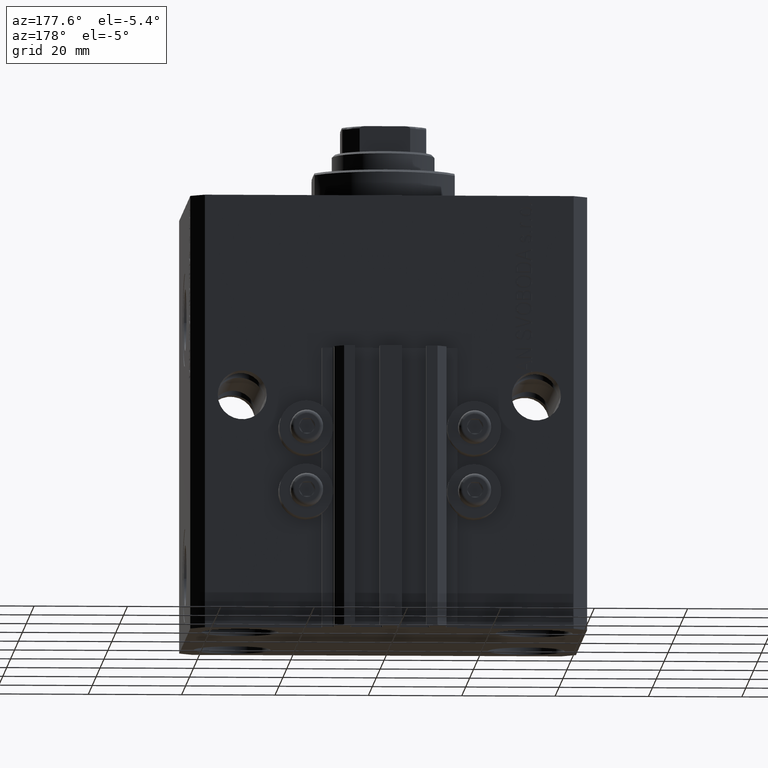
[diagram: clean part render]
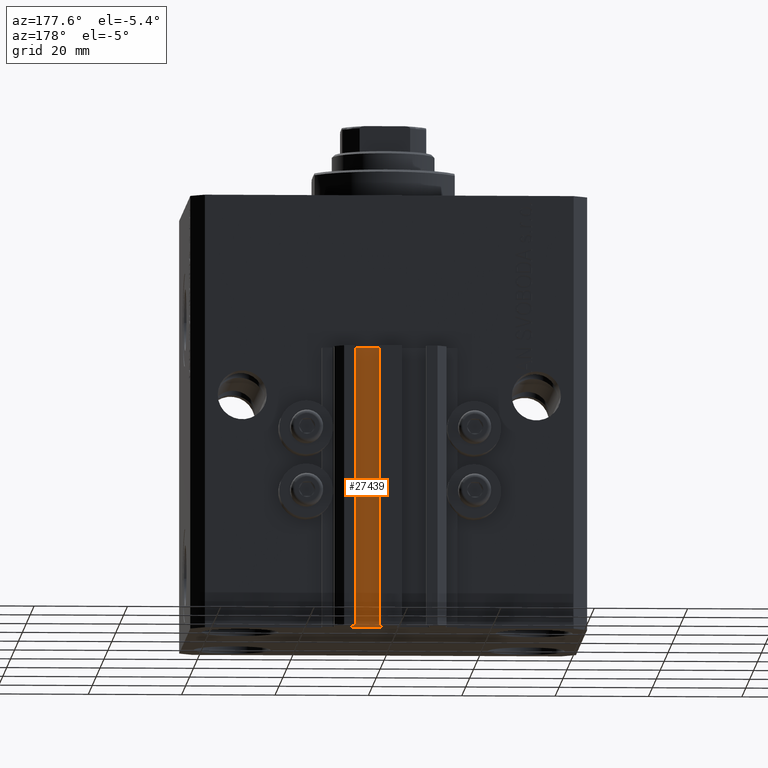
[diagram: same view with one face highlighted and labeled with its STEP entity id]
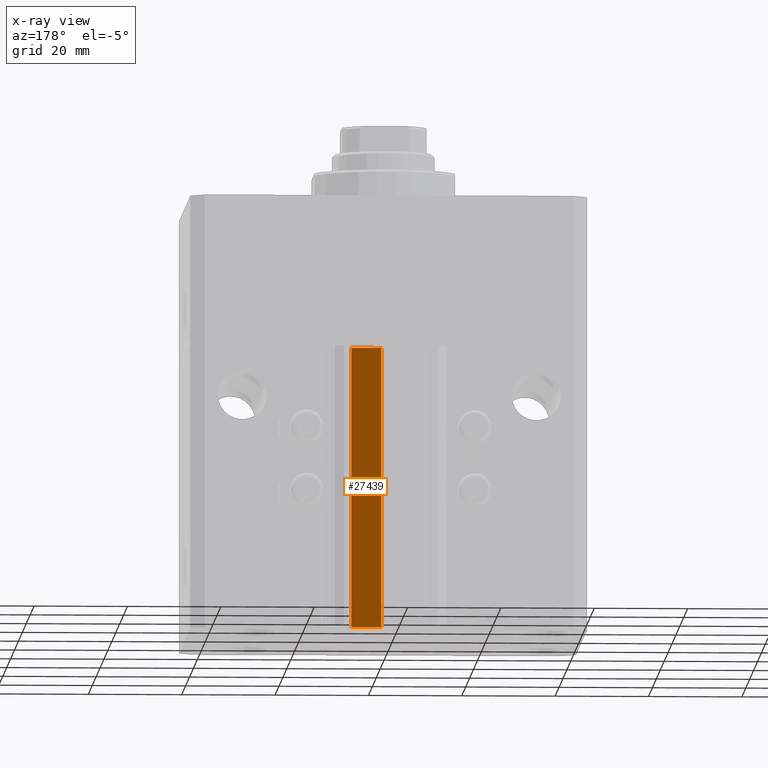
[diagram: x-ray of the same camera — body ghosted, the highlighted face saturated]
A machine part, auxiliary view. The second image highlights one B-rep face of the part: STEP entity #27439.
The next image is the same camera in x-ray: the body ghosted, the highlighted face saturated — about 0% of this face is hidden behind the body in this view.
In plain terms, the highlighted planar face has unit normal (0, 1, 0).
Its self-contained STEP definition (entity closure, byte-faithful):
#1984 = CARTESIAN_POINT ( 'NONE',  ( 8.199999999999999289, 33.50000000000000000, -33.00000000000000000 ) ) ;
#2753 = CARTESIAN_POINT ( 'NONE',  ( 1.800000000000000933, 33.50000000000000000, -33.00000000000000000 ) ) ;
#3971 = VECTOR ( 'NONE', #43248, 1000.000000000000000 ) ;
#4375 = LINE ( 'NONE', #47911, #21406 ) ;
#6022 = ORIENTED_EDGE ( 'NONE', *, *, #27870, .T. ) ;
#8822 = CARTESIAN_POINT ( 'NONE',  ( 8.199999999999999289, 33.50000000000000000, -93.00000000000000000 ) ) ;
#9777 = VERTEX_POINT ( 'NONE', #2753 ) ;
#10196 = EDGE_LOOP ( 'NONE', ( #26422, #31578, #25515, #6022 ) ) ;
#15487 = VERTEX_POINT ( 'NONE', #37992 ) ;
#16309 = VECTOR ( 'NONE', #42845, 1000.000000000000000 ) ;
#18270 = VERTEX_POINT ( 'NONE', #24890 ) ;
#18769 = EDGE_CURVE ( 'NONE', #15487, #18270, #4375, .T. ) ;
#20005 = DIRECTION ( 'NONE',  ( 0.000000000000000000, 0.000000000000000000, 1.000000000000000000 ) ) ;
#21406 = VECTOR ( 'NONE', #22856, 1000.000000000000000 ) ;
#21866 = CARTESIAN_POINT ( 'NONE',  ( 1.800000000000000933, 33.50000000000000000, -93.00000000000000000 ) ) ;
#22856 = DIRECTION ( 'NONE',  ( 0.000000000000000000, 0.000000000000000000, 1.000000000000000000 ) ) ;
#24295 = LINE ( 'NONE', #40487, #3971 ) ;
#24890 = CARTESIAN_POINT ( 'NONE',  ( 8.199999999999999289, 33.50000000000000000, -33.00000000000000000 ) ) ;
#25515 = ORIENTED_EDGE ( 'NONE', *, *, #35051, .T. ) ;
#26422 = ORIENTED_EDGE ( 'NONE', *, *, #31427, .F. ) ;
#27255 = LINE ( 'NONE', #31610, #28601 ) ;
#27439 = ADVANCED_FACE ( 'NONE', ( #41412 ), #42142, .T. ) ;
#27870 = EDGE_CURVE ( 'NONE', #47426, #9777, #27255, .T. ) ;
#28206 = DIRECTION ( 'NONE',  ( 0.000000000000000000, 0.000000000000000000, 1.000000000000000000 ) ) ;
#28601 = VECTOR ( 'NONE', #28206, 1000.000000000000000 ) ;
#30925 = AXIS2_PLACEMENT_3D ( 'NONE', #8822, #38480, #20005 ) ;
#31427 = EDGE_CURVE ( 'NONE', #18270, #9777, #35300, .T. ) ;
#31578 = ORIENTED_EDGE ( 'NONE', *, *, #18769, .F. ) ;
#31610 = CARTESIAN_POINT ( 'NONE',  ( 1.800000000000000933, 33.50000000000000000, -93.00000000000000000 ) ) ;
#35051 = EDGE_CURVE ( 'NONE', #15487, #47426, #24295, .T. ) ;
#35300 = LINE ( 'NONE', #1984, #16309 ) ;
#37992 = CARTESIAN_POINT ( 'NONE',  ( 8.199999999999999289, 33.50000000000000000, -93.00000000000000000 ) ) ;
#38480 = DIRECTION ( 'NONE',  ( 0.000000000000000000, 1.000000000000000000, -0.000000000000000000 ) ) ;
#40487 = CARTESIAN_POINT ( 'NONE',  ( 8.199999999999999289, 33.50000000000000000, -93.00000000000000000 ) ) ;
#41412 = FACE_OUTER_BOUND ( 'NONE', #10196, .T. ) ;
#42142 = PLANE ( 'NONE',  #30925 ) ;
#42845 = DIRECTION ( 'NONE',  ( -1.000000000000000000, 0.000000000000000000, 0.000000000000000000 ) ) ;
#43248 = DIRECTION ( 'NONE',  ( -1.000000000000000000, 0.000000000000000000, 0.000000000000000000 ) ) ;
#47426 = VERTEX_POINT ( 'NONE', #21866 ) ;
#47911 = CARTESIAN_POINT ( 'NONE',  ( 8.199999999999999289, 33.50000000000000000, -93.00000000000000000 ) ) ;